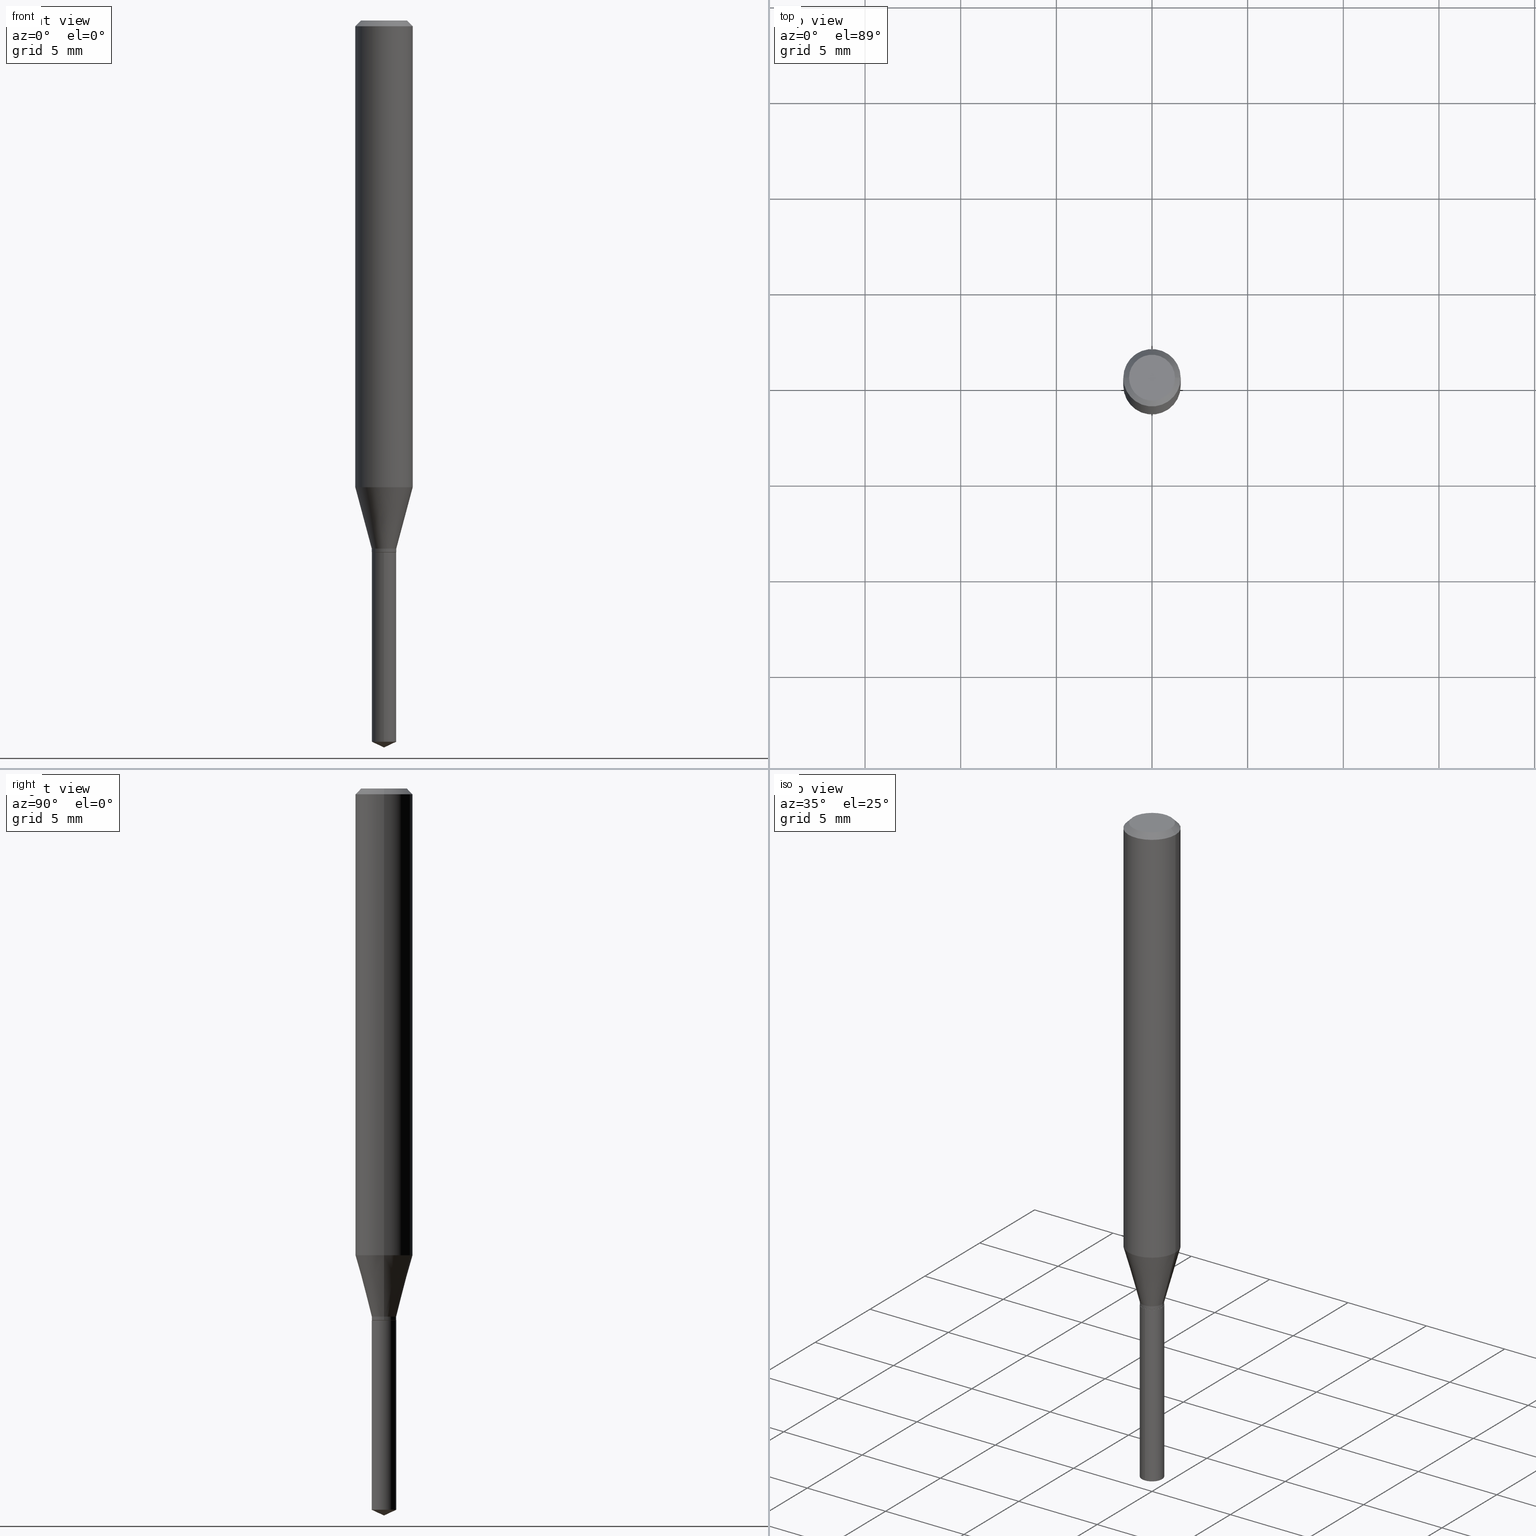
[diagram: canonical four-view strip — front | top / right | iso, engineering-drawing reading convention]
A machine part, canonical four-view strip (front | top / right | iso — engineering-drawing reading convention). The complete STEP part file that produces these views, byte-faithful:
ISO-10303-21;
HEADER;
FILE_DESCRIPTION (( 'STEP AP203' ),
    '1' );
FILE_NAME ('07858.STEP',
    '2024-04-24T04:39:55',
    ( '' ),
    ( '' ),
    'SwSTEP 2.0',
    'SolidWorks 2023',
    '' );
FILE_SCHEMA (( 'CONFIG_CONTROL_DESIGN' ));
ENDSEC;

DATA;
#1 = DIRECTION ( 'NONE',  ( -2.445470214571802116E-29, 3.491479321953280158E-15, 1.000000000000000000 ) ) ;
#2 = AXIS2_PLACEMENT_3D ( 'NONE', #137, #476, #321 ) ;
#3 = AXIS2_PLACEMENT_3D ( 'NONE', #271, #367, #448 ) ;
#4 = FACE_OUTER_BOUND ( 'NONE', #35, .T. ) ;
#5 = EDGE_CURVE ( 'NONE', #42, #370, #37, .T. ) ;
#6 = EDGE_LOOP ( 'NONE', ( #86, #202, #490, #234 ) ) ;
#7 = DIRECTION ( 'NONE',  ( -2.445468806185136597E-29, 3.491481338843145583E-15, 1.000000000000000000 ) ) ;
#8 = EDGE_LOOP ( 'NONE', ( #420, #287, #304, #311 ) ) ;
#9 = LENGTH_MEASURE_WITH_UNIT ( LENGTH_MEASURE( 0.02539999999999999897 ), #164 );
#10 = FACE_OUTER_BOUND ( 'NONE', #44, .T. ) ;
#11 = CARTESIAN_POINT ( 'NONE',  ( -0.05905000000000006077, 4.195754854663395916E-16, -2.904631170795524694E-30 ) ) ;
#12 = CIRCLE ( 'NONE', #249, 0.02469999999999999973 ) ;
#13 = ADVANCED_FACE ( 'NONE', ( #10 ), #428, .T. ) ;
#14 = ORIENTED_EDGE ( 'NONE', *, *, #320, .T. ) ;
#15 = DIRECTION ( 'NONE',  ( 1.000000000000000000, -6.982962677686266711E-15, 4.876185090822587894E-29 ) ) ;
#16 = CARTESIAN_POINT ( 'NONE',  ( -1.759706594776671726E-16, -0.02520000000000382004, -1.094499999999999806 ) ) ;
#17 = LINE ( 'NONE', #95, #373 ) ;
#18 = DIRECTION ( 'NONE',  ( 6.982962677686265922E-15, 1.000000000000000000, -3.491479321953280158E-15 ) ) ;
#19 = ADVANCED_FACE ( 'NONE', ( #314 ), #285, .T. ) ;
#20 = VECTOR ( 'NONE', #299, 39.37007874015748143 ) ;
#21 = CONICAL_SURFACE ( 'NONE', #480, 0.02469999999999999973, 0.7853981633974141952 ) ;
#22 = CALENDAR_DATE ( 2024, 24, 4 ) ;
#23 = DIRECTION ( 'NONE',  ( -2.445468806185136597E-29, 3.491481338843145583E-15, 1.000000000000000000 ) ) ;
#24 = COORDINATED_UNIVERSAL_TIME_OFFSET ( 5, 0, .BEHIND. ) ;
#25 = FACE_OUTER_BOUND ( 'NONE', #129, .T. ) ;
#26 = EDGE_CURVE ( 'NONE', #390, #462, #381, .T. ) ;
#27 = EDGE_CURVE ( 'NONE', #167, #370, #353, .T. ) ;
#28 = PERSON_AND_ORGANIZATION_ROLE ( 'creator' ) ;
#29 = CARTESIAN_POINT ( 'NONE',  ( 2.888098660104665518E-31, -4.123439461173782112E-17, -0.01181000000000007738 ) ) ;
#30 = VECTOR ( 'NONE', #364, 39.37007874015748854 ) ;
#31 = AXIS2_PLACEMENT_3D ( 'NONE', #68, #413, #65 ) ;
#32 = DIRECTION ( 'NONE',  ( -2.445468806185136597E-29, 3.491481338843145583E-15, 1.000000000000000000 ) ) ;
#33 = CARTESIAN_POINT ( 'NONE',  ( -9.261968845786000133E-28, 1.322362114038720264E-13, 37.87397874015748300 ) ) ;
#34 = DIRECTION ( 'NONE',  ( -1.000000000000000000, 6.982962677686266711E-15, 0.000000000000000000 ) ) ;
#35 = EDGE_LOOP ( 'NONE', ( #190, #246 ) ) ;
#36 = CC_DESIGN_PERSON_AND_ORGANIZATION_ASSIGNMENT ( #98, #131, ( #442 ) ) ;
#37 = CIRCLE ( 'NONE', #471, 0.02520000000000000018 ) ;
#38 = LOCAL_TIME ( 0, 39, 55.00000000000000000, #24 ) ;
#39 = DIRECTION ( 'NONE',  ( 1.000000000000000000, -6.982962677686271444E-15, 0.000000000000000000 ) ) ;
#40 = VERTEX_POINT ( 'NONE', #132 ) ;
#41 = DIRECTION ( 'NONE',  ( -6.982962677686267499E-15, -1.000000000000000000, 3.520397390770469253E-15 ) ) ;
#42 = VERTEX_POINT ( 'NONE', #259 ) ;
#43 = EDGE_CURVE ( 'NONE', #370, #42, #51, .T. ) ;
#44 = EDGE_LOOP ( 'NONE', ( #416, #455, #224, #485 ) ) ;
#45 = AXIS2_PLACEMENT_3D ( 'NONE', #387, #120, #277 ) ;
#46 = CONICAL_SURFACE ( 'NONE', #435, 84.42940631927396566, 1.134464013796314230 ) ;
#47 = DIRECTION ( 'NONE',  ( -2.445468806185136877E-29, 3.491481338843145188E-15, 1.000000000000000000 ) ) ;
#48 = EDGE_LOOP ( 'NONE', ( #385, #201, #412, #301 ) ) ;
#49 = VERTEX_POINT ( 'NONE', #253 ) ;
#50 = ORIENTED_EDGE ( 'NONE', *, *, #320, .F. ) ;
#51 = CIRCLE ( 'NONE', #308, 0.02520000000000000018 ) ;
#52 =( CONVERSION_BASED_UNIT ( 'INCH', #9 ) LENGTH_UNIT ( ) NAMED_UNIT ( #289 ) );
#53 = DIRECTION ( 'NONE',  ( 1.000000000000000000, -6.982962677686266711E-15, 4.876176775795935793E-29 ) ) ;
#54 = DESIGN_CONTEXT ( 'detailed design', #227, 'design' ) ;
#55 = DIRECTION ( 'NONE',  ( 1.000000000000000000, -6.982962677686271444E-15, 0.000000000000000000 ) ) ;
#56 = EDGE_CURVE ( 'NONE', #69, #127, #463, .T. ) ;
#57 = DIRECTION ( 'NONE',  ( -2.445468806185136877E-29, 3.491481338843145188E-15, 1.000000000000000000 ) ) ;
#58 = PERSON_AND_ORGANIZATION ( #235, #239 ) ;
#59 = DIRECTION ( 'NONE',  ( 1.000000000000000000, -6.982962677686266711E-15, 0.000000000000000000 ) ) ;
#60 = LOCAL_TIME ( 0, 39, 55.00000000000000000, #474 ) ;
#61 = CARTESIAN_POINT ( 'NONE',  ( 2.657980045442624351E-29, -3.794891067188614341E-15, -1.086899999999999755 ) ) ;
#62 = PRODUCT_DEFINITION_SHAPE ( 'NONE', 'NONE',  #241 ) ;
#63 = MANIFOLD_SOLID_BREP ( 'Body-Move/Copy2[1]', #158 ) ;
#64 = DIRECTION ( 'NONE',  ( -6.328713451373368590E-15, -0.9063077870366484934, 0.4226182617407026054 ) ) ;
#65 = DIRECTION ( 'NONE',  ( 1.000000000000000000, -6.982962677686271444E-15, 0.000000000000000000 ) ) ;
#66 = CIRCLE ( 'NONE', #91, 0.04724000000000000421 ) ;
#67 = AXIS2_PLACEMENT_3D ( 'NONE', #225, #306, #34 ) ;
#68 = CARTESIAN_POINT ( 'NONE',  ( 2.675342873966538993E-29, -3.819680584694400481E-15, -1.093999999999999861 ) ) ;
#69 = VERTEX_POINT ( 'NONE', #218 ) ;
#70 = CC_DESIGN_PERSON_AND_ORGANIZATION_ASSIGNMENT ( #363, #394, ( #125 ) ) ;
#71 = DIRECTION ( 'NONE',  ( 1.000000000000000000, -6.982962677686271444E-15, 0.000000000000000000 ) ) ;
#72 = ORIENTED_EDGE ( 'NONE', *, *, #430, .F. ) ;
#73 = FACE_OUTER_BOUND ( 'NONE', #460, .T. ) ;
#74 = ORIENTED_EDGE ( 'NONE', *, *, #124, .F. ) ;
#75 = AXIS2_PLACEMENT_3D ( 'NONE', #191, #334, #156 ) ;
#76 = ADVANCED_FACE ( 'NONE', ( #210 ), #178, .T. ) ;
#77 = CARTESIAN_POINT ( 'NONE',  ( 2.676565608369631794E-29, -3.821426325363822773E-15, -1.094499999999999806 ) ) ;
#78 = ADVANCED_FACE ( 'NONE', ( #25 ), #185, .F. ) ;
#79 = FACE_OUTER_BOUND ( 'NONE', #8, .T. ) ;
#80 = ORIENTED_EDGE ( 'NONE', *, *, #194, .F. ) ;
#81 = LINE ( 'NONE', #310, #366 ) ;
#82 = ORIENTED_EDGE ( 'NONE', *, *, #326, .T. ) ;
#83 = VECTOR ( 'NONE', #103, 39.37007874015747433 ) ;
#84 = VECTOR ( 'NONE', #114, 39.37007874015748143 ) ;
#85 = FACE_OUTER_BOUND ( 'NONE', #378, .T. ) ;
#86 = ORIENTED_EDGE ( 'NONE', *, *, #368, .T. ) ;
#87 = DIRECTION ( 'NONE',  ( 1.000000000000000000, 0.000000000000000000, 0.000000000000000000 ) ) ;
#88 = ORIENTED_EDGE ( 'NONE', *, *, #56, .F. ) ;
#89 = LINE ( 'NONE', #11, #272 ) ;
#90 = ORIENTED_EDGE ( 'NONE', *, *, #5, .F. ) ;
#91 = AXIS2_PLACEMENT_3D ( 'NONE', #99, #105, #216 ) ;
#92 = AXIS2_PLACEMENT_3D ( 'NONE', #119, #174, #344 ) ;
#93 = EDGE_LOOP ( 'NONE', ( #340, #372, #82, #343 ) ) ;
#94 = EDGE_CURVE ( 'NONE', #488, #42, #397, .T. ) ;
#95 = CARTESIAN_POINT ( 'NONE',  ( 0.05905000000000006077, -4.123439461173744764E-16, 2.879382386107503023E-30 ) ) ;
#96 = PERSON_AND_ORGANIZATION ( #235, #239 ) ;
#97 = CARTESIAN_POINT ( 'NONE',  ( 2.888098660104665518E-31, -4.123439461173782112E-17, -0.01181000000000007738 ) ) ;
#98 = PERSON_AND_ORGANIZATION ( #235, #239 ) ;
#99 = CARTESIAN_POINT ( 'NONE',  ( 8.265746106709734507E-48, -1.180129479067563789E-33, -3.380025165646692144E-19 ) ) ;
#100 = CIRCLE ( 'NONE', #464, 0.05904999999999999832 ) ;
#101 = EDGE_CURVE ( 'NONE', #238, #278, #180, .T. ) ;
#102 = APPROVAL_ROLE ( '' ) ;
#103 = DIRECTION ( 'NONE',  ( -0.2588190451025213501, 5.211531920934551042E-15, 0.9659258262890682012 ) ) ;
#104 = EDGE_CURVE ( 'NONE', #462, #40, #323, .T. ) ;
#105 = DIRECTION ( 'NONE',  ( -2.445468806185136597E-29, 3.491481338843145583E-15, 1.000000000000000000 ) ) ;
#106 = FACE_OUTER_BOUND ( 'NONE', #350, .T. ) ;
#107 = AXIS2_PLACEMENT_3D ( 'NONE', #465, #282, #53 ) ;
#108 = EDGE_LOOP ( 'NONE', ( #147, #172, #110, #88 ) ) ;
#109 = DIRECTION ( 'NONE',  ( 1.000000000000000000, -6.982962677686269866E-15, 0.000000000000000000 ) ) ;
#110 = ORIENTED_EDGE ( 'NONE', *, *, #199, .T. ) ;
#111 = DIRECTION ( 'NONE',  ( 1.000000000000000000, -6.982962677686266711E-15, 0.000000000000000000 ) ) ;
#112 = ORIENTED_EDGE ( 'NONE', *, *, #27, .T. ) ;
#113 = EDGE_CURVE ( 'NONE', #49, #69, #262, .T. ) ;
#114 = DIRECTION ( 'NONE',  ( 0.7071067811865451302, -7.319954787623248157E-15, -0.7071067811865499042 ) ) ;
#115 = ORIENTED_EDGE ( 'NONE', *, *, #291, .T. ) ;
#116 = DIRECTION ( 'NONE',  ( -6.982962677686266711E-15, -1.000000000000000000, 5.420333320762426626E-15 ) ) ;
#117 = ORIENTED_EDGE ( 'NONE', *, *, #389, .F. ) ;
#118 = APPROVAL ( #255, 'UNSPECIFIED' ) ;
#119 = CARTESIAN_POINT ( 'NONE',  ( 0.000000000000000000, 0.000000000000000000, 0.000000000000000000 ) ) ;
#120 = DIRECTION ( 'NONE',  ( -2.445468806185136597E-29, 3.491481338843145583E-15, 1.000000000000000000 ) ) ;
#121 =( NAMED_UNIT ( * ) SI_UNIT ( $, .STERADIAN. ) SOLID_ANGLE_UNIT ( ) );
#122 = VERTEX_POINT ( 'NONE', #446 ) ;
#123 = CC_DESIGN_PERSON_AND_ORGANIZATION_ASSIGNMENT ( #217, #361, ( #125 ) ) ;
#124 = EDGE_CURVE ( 'NONE', #379, #49, #66, .T. ) ;
#125 = PRODUCT_DEFINITION_FORMATION_WITH_SPECIFIED_SOURCE ( 'ANY', '', #140, .NOT_KNOWN. ) ;
#126 = CARTESIAN_POINT ( 'NONE',  ( -0.02469999999999999973, -3.643273042456966434E-15, -1.094499999999999806 ) ) ;
#127 = VERTEX_POINT ( 'NONE', #295 ) ;
#128 = DIRECTION ( 'NONE',  ( 1.000000000000000000, -6.982962677686269866E-15, 0.000000000000000000 ) ) ;
#129 = EDGE_LOOP ( 'NONE', ( #149, #319 ) ) ;
#130 = UNCERTAINTY_MEASURE_WITH_UNIT (LENGTH_MEASURE( 1.000000000000000082E-05 ), #52, 'distance_accuracy_value', 'NONE');
#131 = PERSON_AND_ORGANIZATION_ROLE ( 'classification_officer' ) ;
#132 = CARTESIAN_POINT ( 'NONE',  ( -0.02520000000000000018, -3.628229056529962163E-15, -1.093999999999999861 ) ) ;
#133 = EDGE_CURVE ( 'NONE', #488, #167, #358, .T. ) ;
#134 = AXIS2_PLACEMENT_3D ( 'NONE', #268, #32, #111 ) ;
#135 = DIRECTION ( 'NONE',  ( -1.000000000000000000, 6.982962677686265922E-15, -4.876176775795935793E-29 ) ) ;
#136 = DATE_AND_TIME ( #469, #315 ) ;
#137 = CARTESIAN_POINT ( 'NONE',  ( 3.629929841022778800E-29, -5.182576211698120707E-15, -1.484349047014493994 ) ) ;
#138 = APPROVAL_DATE_TIME ( #261, #176 ) ;
#139 = DIRECTION ( 'NONE',  ( 2.445470214571801836E-29, -3.491479321953280158E-15, -1.000000000000000000 ) ) ;
#140 = PRODUCT ( '07858', '07858', '', ( #386 ) ) ;
#141 = DATE_AND_TIME ( #213, #38 ) ;
#142 = VECTOR ( 'NONE', #356, 39.37007874015748143 ) ;
#143 = CARTESIAN_POINT ( 'NONE',  ( 3.658664905062460986E-29, -5.223606628546217219E-15, -1.496099999999999985 ) ) ;
#144 = VECTOR ( 'NONE', #192, 39.37007874015748854 ) ;
#145 = DIRECTION ( 'NONE',  ( 2.438088387897960049E-29, -3.491481338843145188E-15, -1.000000000000000000 ) ) ;
#146 = DIRECTION ( 'NONE',  ( -2.445468806185136877E-29, 3.491481338843145188E-15, 1.000000000000000000 ) ) ;
#147 = ORIENTED_EDGE ( 'NONE', *, *, #408, .F. ) ;
#148 = DIRECTION ( 'NONE',  ( -2.445470214571802116E-29, 3.491479321953280158E-15, 1.000000000000000000 ) ) ;
#149 = ORIENTED_EDGE ( 'NONE', *, *, #393, .T. ) ;
#150 = APPROVAL_PERSON_ORGANIZATION ( #398, #247, #328 ) ;
#151 = CC_DESIGN_PERSON_AND_ORGANIZATION_ASSIGNMENT ( #96, #28, ( #241 ) ) ;
#152 = FACE_OUTER_BOUND ( 'NONE', #93, .T. ) ;
#153 = ORIENTED_EDGE ( 'NONE', *, *, #133, .F. ) ;
#154 = CARTESIAN_POINT ( 'NONE',  ( 2.676565608369631794E-29, -3.821426325363822773E-15, -1.094499999999999806 ) ) ;
#155 = ORIENTED_EDGE ( 'NONE', *, *, #338, .T. ) ;
#156 = DIRECTION ( 'NONE',  ( -6.982962677686266711E-15, -1.000000000000000000, 0.000000000000000000 ) ) ;
#157 = ORIENTED_EDGE ( 'NONE', *, *, #133, .T. ) ;
#158 = CLOSED_SHELL ( 'NONE', ( #236, #76, #284, #384, #173 ) ) ;
#159 = VECTOR ( 'NONE', #242, 39.37007874015747433 ) ;
#160 = LOCAL_TIME ( 0, 39, 55.00000000000000000, #444 ) ;
#161 = LINE ( 'NONE', #467, #159 ) ;
#162 = EDGE_LOOP ( 'NONE', ( #345, #434, #153 ) ) ;
#163 = EDGE_CURVE ( 'NONE', #278, #449, #279, .T. ) ;
#164 =( LENGTH_UNIT ( ) NAMED_UNIT ( * ) SI_UNIT ( $, .METRE. ) );
#165 = VERTEX_POINT ( 'NONE', #470 ) ;
#166 = DIRECTION ( 'NONE',  ( -2.445468806185136597E-29, 3.491481338843145583E-15, 1.000000000000000000 ) ) ;
#167 = VERTEX_POINT ( 'NONE', #292 ) ;
#168 = VECTOR ( 'NONE', #256, 39.37007874015748143 ) ;
#169 = VECTOR ( 'NONE', #64, 39.37007874015748143 ) ;
#170 = CC_DESIGN_APPROVAL ( #118, ( #125 ) ) ;
#171 = CARTESIAN_POINT ( 'NONE',  ( 2.657980045442624351E-29, -3.794891067188614341E-15, -1.086899999999999755 ) ) ;
#172 = ORIENTED_EDGE ( 'NONE', *, *, #163, .T. ) ;
#173 = ADVANCED_FACE ( 'NONE', ( #263 ), #437, .F. ) ;
#174 = DIRECTION ( 'NONE',  ( -2.445468806185136597E-29, 3.491481338843145583E-15, 1.000000000000000000 ) ) ;
#175 = ORIENTED_EDGE ( 'NONE', *, *, #293, .F. ) ;
#176 = APPROVAL ( #184, 'UNSPECIFIED' ) ;
#177 = DIRECTION ( 'NONE',  ( -6.982962677686267499E-15, -1.000000000000000000, 3.520397390770469253E-15 ) ) ;
#178 = CONICAL_SURFACE ( 'NONE', #456, 84.42940631927396566, 1.134464013796314230 ) ;
#179 = CIRCLE ( 'NONE', #309, 0.02520000000000000018 ) ;
#180 = LINE ( 'NONE', #445, #83 ) ;
#181 = CARTESIAN_POINT ( 'NONE',  ( 1.790567694115719708E-16, 0.02519999999999618032, -1.094500000000000028 ) ) ;
#182 = PERSON_AND_ORGANIZATION_ROLE ( 'design_owner' ) ;
#183 = CARTESIAN_POINT ( 'NONE',  ( -0.05904999999999999832, 3.711095515056362054E-16, -0.01181000000000007738 ) ) ;
#184 = APPROVAL_STATUS ( 'not_yet_approved' ) ;
#185 = PLANE ( 'NONE',  #220 ) ;
#186 = CONICAL_SURFACE ( 'NONE', #327, 0.02520000000000000018, 0.2617993877991500740 ) ;
#187 = ADVANCED_FACE ( 'NONE', ( #406 ), #257, .T. ) ;
#188 = LINE ( 'NONE', #339, #280 ) ;
#189 = DIRECTION ( 'NONE',  ( -1.000000000000000000, 6.982962677686266711E-15, 0.000000000000000000 ) ) ;
#190 = ORIENTED_EDGE ( 'NONE', *, *, #26, .F. ) ;
#191 = CARTESIAN_POINT ( 'NONE',  ( 3.629929841022778800E-29, -5.182576211698120707E-15, -1.484349047014493994 ) ) ;
#192 = DIRECTION ( 'NONE',  ( 0.7071067811865232589, -2.468850131082003836E-15, 0.7071067811865715536 ) ) ;
#193 = EDGE_LOOP ( 'NONE', ( #115, #197, #432, #72 ) ) ;
#194 = EDGE_CURVE ( 'NONE', #165, #167, #478, .T. ) ;
#195 = DIRECTION ( 'NONE',  ( -2.445468806185136597E-29, 3.491481338843145583E-15, 1.000000000000000000 ) ) ;
#196 = ORIENTED_EDGE ( 'NONE', *, *, #26, .T. ) ;
#197 = ORIENTED_EDGE ( 'NONE', *, *, #101, .T. ) ;
#198 = CYLINDRICAL_SURFACE ( 'NONE', #92, 0.02520000000000000018 ) ;
#199 = EDGE_CURVE ( 'NONE', #449, #127, #17, .T. ) ;
#200 = ORIENTED_EDGE ( 'NONE', *, *, #254, .T. ) ;
#201 = ORIENTED_EDGE ( 'NONE', *, *, #393, .F. ) ;
#202 = ORIENTED_EDGE ( 'NONE', *, *, #94, .T. ) ;
#203 = AXIS2_PLACEMENT_3D ( 'NONE', #97, #215, #189 ) ;
#204 = EDGE_CURVE ( 'NONE', #40, #238, #322, .T. ) ;
#205 = AXIS2_PLACEMENT_3D ( 'NONE', #388, #166, #15 ) ;
#206 = DIRECTION ( 'NONE',  ( 0.000000000000000000, 0.000000000000000000, 1.000000000000000000 ) ) ;
#207 = CARTESIAN_POINT ( 'NONE',  ( 2.676565608369631794E-29, -3.821426325363822773E-15, -1.094499999999999806 ) ) ;
#208 = CC_DESIGN_DATE_AND_TIME_ASSIGNMENT ( #477, #436, ( #241 ) ) ;
#209 = APPROVAL_STATUS ( 'not_yet_approved' ) ;
#210 = FACE_OUTER_BOUND ( 'NONE', #332, .T. ) ;
#211 = CARTESIAN_POINT ( 'NONE',  ( 2.349044167195312486E-29, -3.353812509542948489E-15, -0.9605700801637931940 ) ) ;
#212 = AXIS2_PLACEMENT_3D ( 'NONE', #211, #325, #404 ) ;
#213 = CALENDAR_DATE ( 2024, 24, 4 ) ;
#214 = AXIS2_PLACEMENT_3D ( 'NONE', #77, #195, #109 ) ;
#215 = DIRECTION ( 'NONE',  ( 2.445468806185136597E-29, -3.491481338843145583E-15, -1.000000000000000000 ) ) ;
#216 = DIRECTION ( 'NONE',  ( 1.000000000000000000, -6.982962677686266711E-15, 4.876185090822587894E-29 ) ) ;
#217 = PERSON_AND_ORGANIZATION ( #235, #239 ) ;
#218 = CARTESIAN_POINT ( 'NONE',  ( -0.05904999999999999832, -1.277947966611002630E-15, -0.01181000000000007738 ) ) ;
#219 = ADVANCED_FACE ( 'NONE', ( #439 ), #229, .T. ) ;
#220 = AXIS2_PLACEMENT_3D ( 'NONE', #441, #145, #135 ) ;
#221 = CARTESIAN_POINT ( 'NONE',  ( 0.02469999999999999973, -3.993905503502673637E-15, -1.094499999999999806 ) ) ;
#222 = AXIS2_PLACEMENT_3D ( 'NONE', #302, #270, #39 ) ;
#223 = DIRECTION ( 'NONE',  ( -6.982962677686266711E-15, -1.000000000000000000, 5.420333320762426626E-15 ) ) ;
#224 = ORIENTED_EDGE ( 'NONE', *, *, #254, .F. ) ;
#225 = CARTESIAN_POINT ( 'NONE',  ( 2.888098660104665518E-31, -4.123439461173782112E-17, -0.01181000000000007738 ) ) ;
#226 = EDGE_LOOP ( 'NONE', ( #382, #337 ) ) ;
#227 = APPLICATION_CONTEXT ( 'configuration controlled 3d designs of mechanical parts and assemblies' ) ;
#228 = FACE_OUTER_BOUND ( 'NONE', #6, .T. ) ;
#229 = CONICAL_SURFACE ( 'NONE', #203, 0.05904999999999999832, 0.7853981633974449483 ) ;
#230 = AXIS2_PLACEMENT_3D ( 'NONE', #265, #148, #223 ) ;
#231 = ORIENTED_EDGE ( 'NONE', *, *, #113, .F. ) ;
#232 = CC_DESIGN_APPROVAL ( #176, ( #442 ) ) ;
#233 = DIRECTION ( 'NONE',  ( 1.000000000000000000, -6.982962677686269866E-15, 0.000000000000000000 ) ) ;
#234 = ORIENTED_EDGE ( 'NONE', *, *, #27, .F. ) ;
#235 = PERSON ( 'UNSPECIFIED', 'UNSPECIFIED', 'UNSPECIFIED', ('UNSPECIFIED'), ('UNSPECIFIED'), ('UNSPECIFIED') ) ;
#236 = ADVANCED_FACE ( 'NONE', ( #228 ), #482, .T. ) ;
#237 = DIRECTION ( 'NONE',  ( -2.438088387897960049E-29, 3.491481338843145188E-15, 1.000000000000000000 ) ) ;
#238 = VERTEX_POINT ( 'NONE', #484 ) ;
#239 = ORGANIZATION ( 'UNSPECIFIED', 'UNSPECIFIED', '' ) ;
#240 = MANIFOLD_SOLID_BREP ( 'Body-Move/Copy2[2]', #365 ) ;
#241 = PRODUCT_DEFINITION ( 'UNKNOWN', '', #125, #54 ) ;
#242 = DIRECTION ( 'NONE',  ( 0.2588190451025213501, 1.565188264969621968E-15, 0.9659258262890682012 ) ) ;
#243 = DIRECTION ( 'NONE',  ( -2.445470214571802116E-29, 3.491479321953280158E-15, 1.000000000000000000 ) ) ;
#244 =( NAMED_UNIT ( * ) PLANE_ANGLE_UNIT ( ) SI_UNIT ( $, .RADIAN. ) );
#245 = ORIENTED_EDGE ( 'NONE', *, *, #104, .T. ) ;
#246 = ORIENTED_EDGE ( 'NONE', *, *, #338, .F. ) ;
#247 = APPROVAL ( #209, 'UNSPECIFIED' ) ;
#248 = VECTOR ( 'NONE', #468, 39.37007874015748143 ) ;
#249 = AXIS2_PLACEMENT_3D ( 'NONE', #154, #487, #233 ) ;
#250 = APPROVAL_DATE_TIME ( #136, #118 ) ;
#251 = ORIENTED_EDGE ( 'NONE', *, *, #368, .F. ) ;
#252 = CALENDAR_DATE ( 2024, 24, 4 ) ;
#253 = CARTESIAN_POINT ( 'NONE',  ( -0.04724000000000000421, 3.504923541997677355E-16, -3.380025165670481712E-19 ) ) ;
#254 = EDGE_CURVE ( 'NONE', #127, #69, #100, .T. ) ;
#255 = APPROVAL_STATUS ( 'not_yet_approved' ) ;
#256 = DIRECTION ( 'NONE',  ( -2.445468806185136877E-29, 3.491481338843145188E-15, 1.000000000000000000 ) ) ;
#257 = CONICAL_SURFACE ( 'NONE', #479, 0.02520000000000000018, 0.2617993877991500740 ) ;
#258 = APPLICATION_PROTOCOL_DEFINITION ( 'international standard', 'config_control_design', 1994, #227 ) ;
#259 = CARTESIAN_POINT ( 'NONE',  ( 1.790567694115816097E-16, 0.02519999999999618032, -1.094500000000000028 ) ) ;
#260 = ADVANCED_FACE ( 'NONE', ( #106 ), #266, .T. ) ;
#261 = DATE_AND_TIME ( #22, #160 ) ;
#262 = LINE ( 'NONE', #183, #142 ) ;
#263 = FACE_OUTER_BOUND ( 'NONE', #226, .T. ) ;
#264 = CC_DESIGN_DATE_AND_TIME_ASSIGNMENT ( #141, #296, ( #442 ) ) ;
#265 = CARTESIAN_POINT ( 'NONE',  ( 2.676565608369631794E-29, -3.821426325363822773E-15, -1.094499999999999806 ) ) ;
#266 = CONICAL_SURFACE ( 'NONE', #214, 0.02469999999999999973, 0.7853981633974141952 ) ;
#267 = ORIENTED_EDGE ( 'NONE', *, *, #104, .F. ) ;
#268 = CARTESIAN_POINT ( 'NONE',  ( 2.349044167195312486E-29, -3.353812509542948489E-15, -0.9605700801637931940 ) ) ;
#269 = VERTEX_POINT ( 'NONE', #331 ) ;
#270 = DIRECTION ( 'NONE',  ( -2.445468806185136597E-29, 3.491481338843145583E-15, 1.000000000000000000 ) ) ;
#271 = CARTESIAN_POINT ( 'NONE',  ( 0.000000000000000000, 0.000000000000000000, 0.000000000000000000 ) ) ;
#272 = VECTOR ( 'NONE', #47, 39.37007874015748143 ) ;
#273 = ORIENTED_EDGE ( 'NONE', *, *, #329, .T. ) ;
#274 = CARTESIAN_POINT ( 'NONE',  ( 2.676565608369631794E-29, -3.821426325363822773E-15, -1.094499999999999806 ) ) ;
#275 = EDGE_CURVE ( 'NONE', #449, #278, #443, .T. ) ;
#276 = CARTESIAN_POINT ( 'NONE',  ( 0.05905000000000013016, -3.766156455660323409E-15, -0.9605700801637931940 ) ) ;
#277 = DIRECTION ( 'NONE',  ( 1.000000000000000000, -6.982962677686266711E-15, 4.876176775795935793E-29 ) ) ;
#278 = VERTEX_POINT ( 'NONE', #454 ) ;
#279 = CIRCLE ( 'NONE', #212, 0.05905000000000011628 ) ;
#280 = VECTOR ( 'NONE', #146, 39.37007874015748143 ) ;
#281 = FACE_OUTER_BOUND ( 'NONE', #483, .T. ) ;
#282 = DIRECTION ( 'NONE',  ( -2.445468806185136597E-29, 3.491481338843145583E-15, 1.000000000000000000 ) ) ;
#283 = CC_DESIGN_PERSON_AND_ORGANIZATION_ASSIGNMENT ( #349, #182, ( #140 ) ) ;
#284 = ADVANCED_FACE ( 'NONE', ( #333 ), #46, .T. ) ;
#285 = CYLINDRICAL_SURFACE ( 'NONE', #107, 0.05905000000000006077 ) ;
#286 = SHAPE_DEFINITION_REPRESENTATION ( #62, #433 ) ;
#287 = ORIENTED_EDGE ( 'NONE', *, *, #204, .T. ) ;
#288 = CONICAL_SURFACE ( 'NONE', #67, 0.05904999999999999832, 0.7853981633974449483 ) ;
#289 = DIMENSIONAL_EXPONENTS ( 1.000000000000000000, 0.000000000000000000, 0.000000000000000000, 0.000000000000000000, 0.000000000000000000, 0.000000000000000000, 0.000000000000000000 ) ;
#290 = COORDINATED_UNIVERSAL_TIME_OFFSET ( 5, 0, .BEHIND. ) ;
#291 = EDGE_CURVE ( 'NONE', #269, #238, #457, .T. ) ;
#292 = CARTESIAN_POINT ( 'NONE',  ( -1.759706594776576077E-16, -0.02520000000000518700, -1.484349047014493994 ) ) ;
#293 = EDGE_CURVE ( 'NONE', #40, #122, #418, .T. ) ;
#294 = CARTESIAN_POINT ( 'NONE',  ( 2.676565608369631794E-29, -3.821426325363822773E-15, -1.094499999999999806 ) ) ;
#295 = CARTESIAN_POINT ( 'NONE',  ( 0.05904999999999999832, -4.535783407291118600E-16, -0.01181000000000007738 ) ) ;
#296 = DATE_TIME_ROLE ( 'classification_date' ) ;
#297 = APPROVAL_PERSON_ORGANIZATION ( #58, #176, #359 ) ;
#298 = CARTESIAN_POINT ( 'NONE',  ( -9.261968845786000133E-28, 1.322362114038720264E-13, 37.87397874015748300 ) ) ;
#299 = DIRECTION ( 'NONE',  ( -2.445470214571802396E-29, 3.491479321953280158E-15, 1.000000000000000000 ) ) ;
#300 = CYLINDRICAL_SURFACE ( 'NONE', #3, 0.02520000000000000018 ) ;
#301 = ORIENTED_EDGE ( 'NONE', *, *, #56, .T. ) ;
#302 = CARTESIAN_POINT ( 'NONE',  ( 2.657980045442624351E-29, -3.794891067188614341E-15, -1.086899999999999755 ) ) ;
#303 = CARTESIAN_POINT ( 'NONE',  ( -1.759706594776671726E-16, -0.02520000000000382004, -1.094499999999999806 ) ) ;
#304 = ORIENTED_EDGE ( 'NONE', *, *, #291, .F. ) ;
#305 = FACE_OUTER_BOUND ( 'NONE', #423, .T. ) ;
#306 = DIRECTION ( 'NONE',  ( 2.445468806185136597E-29, -3.491481338843145583E-15, -1.000000000000000000 ) ) ;
#307 = EDGE_CURVE ( 'NONE', #238, #269, #472, .T. ) ;
#308 = AXIS2_PLACEMENT_3D ( 'NONE', #294, #357, #360 ) ;
#309 = AXIS2_PLACEMENT_3D ( 'NONE', #407, #352, #341 ) ;
#310 = CARTESIAN_POINT ( 'NONE',  ( 3.658668015054778287E-29, -5.223602213574301462E-15, -1.496099999999999985 ) ) ;
#311 = ORIENTED_EDGE ( 'NONE', *, *, #326, .F. ) ;
#312 = ORIENTED_EDGE ( 'NONE', *, *, #307, .T. ) ;
#313 = DIRECTION ( 'NONE',  ( -2.445468806185136597E-29, 3.491481338843145583E-15, 1.000000000000000000 ) ) ;
#314 = FACE_OUTER_BOUND ( 'NONE', #108, .T. ) ;
#315 = LOCAL_TIME ( 0, 39, 55.00000000000000000, #402 ) ;
#316 = CARTESIAN_POINT ( 'NONE',  ( 2.676565608369631794E-29, -3.821426325363822773E-15, -1.094499999999999806 ) ) ;
#317 = ORIENTED_EDGE ( 'NONE', *, *, #101, .F. ) ;
#318 = DIRECTION ( 'NONE',  ( 6.439704144417024831E-15, 0.9063077870366513800, 0.4226182617406963327 ) ) ;
#319 = ORIENTED_EDGE ( 'NONE', *, *, #124, .T. ) ;
#320 = EDGE_CURVE ( 'NONE', #390, #122, #419, .T. ) ;
#321 = DIRECTION ( 'NONE',  ( -6.982962677686266711E-15, -1.000000000000000000, 0.000000000000000000 ) ) ;
#322 = LINE ( 'NONE', #475, #168 ) ;
#323 = LINE ( 'NONE', #481, #30 ) ;
#324 = CALENDAR_DATE ( 2024, 24, 4 ) ;
#325 = DIRECTION ( 'NONE',  ( -2.445468806185136597E-29, 3.491481338843145583E-15, 1.000000000000000000 ) ) ;
#326 = EDGE_CURVE ( 'NONE', #122, #269, #188, .T. ) ;
#327 = AXIS2_PLACEMENT_3D ( 'NONE', #171, #313, #422 ) ;
#328 = APPROVAL_ROLE ( '' ) ;
#329 = EDGE_CURVE ( 'NONE', #379, #127, #458, .T. ) ;
#330 = DIRECTION ( 'NONE',  ( -2.445470214571802116E-29, 3.491479321953280158E-15, 1.000000000000000000 ) ) ;
#331 = CARTESIAN_POINT ( 'NONE',  ( 0.02520000000000000018, -3.970861726666308212E-15, -1.086899999999999755 ) ) ;
#332 = EDGE_LOOP ( 'NONE', ( #80, #376, #251 ) ) ;
#333 = FACE_OUTER_BOUND ( 'NONE', #162, .T. ) ;
#334 = DIRECTION ( 'NONE',  ( -2.445470214571802116E-29, 3.491479321953280158E-15, 1.000000000000000000 ) ) ;
#335 = AXIS2_PLACEMENT_3D ( 'NONE', #346, #206, #87 ) ;
#336 = CARTESIAN_POINT ( 'NONE',  ( 2.676565608369631794E-29, -3.821426325363822773E-15, -1.094499999999999806 ) ) ;
#337 = ORIENTED_EDGE ( 'NONE', *, *, #5, .T. ) ;
#338 = EDGE_CURVE ( 'NONE', #462, #390, #12, .T. ) ;
#339 = CARTESIAN_POINT ( 'NONE',  ( 0.02520000000000000018, -1.759706594776939446E-16, 1.228796547500575980E-30 ) ) ;
#340 = ORIENTED_EDGE ( 'NONE', *, *, #204, .F. ) ;
#341 = DIRECTION ( 'NONE',  ( 1.000000000000000000, -6.982962677686271444E-15, 0.000000000000000000 ) ) ;
#342 = CIRCLE ( 'NONE', #75, 0.02520000000000000018 ) ;
#343 = ORIENTED_EDGE ( 'NONE', *, *, #307, .F. ) ;
#344 = DIRECTION ( 'NONE',  ( 1.000000000000000000, -6.982962677686267499E-15, 4.876176775795936353E-29 ) ) ;
#345 = ORIENTED_EDGE ( 'NONE', *, *, #421, .F. ) ;
#346 = CARTESIAN_POINT ( 'NONE',  ( 0.000000000000000000, 0.000000000000000000, 0.000000000000000000 ) ) ;
#347 = CARTESIAN_POINT ( 'NONE',  ( 2.676565608369631794E-29, -3.821426325363822773E-15, -1.094499999999999806 ) ) ;
#348 = PRODUCT_RELATED_PRODUCT_CATEGORY ( 'detail', '', ( #140 ) ) ;
#349 = PERSON_AND_ORGANIZATION ( #235, #239 ) ;
#350 = EDGE_LOOP ( 'NONE', ( #267, #155, #14, #175 ) ) ;
#351 = AXIS2_PLACEMENT_3D ( 'NONE', #336, #1, #116 ) ;
#352 = DIRECTION ( 'NONE',  ( -2.445468806185136597E-29, 3.491481338843145583E-15, 1.000000000000000000 ) ) ;
#353 = LINE ( 'NONE', #16, #248 ) ;
#354 = ADVANCED_FACE ( 'NONE', ( #152 ), #300, .T. ) ;
#355 = ADVANCED_FACE ( 'NONE', ( #305 ), #288, .T. ) ;
#356 = DIRECTION ( 'NONE',  ( -0.7071067811865451302, 2.468850131082231817E-15, -0.7071067811865499042 ) ) ;
#357 = DIRECTION ( 'NONE',  ( -2.445470214571802116E-29, 3.491479321953280158E-15, 1.000000000000000000 ) ) ;
#358 = CIRCLE ( 'NONE', #2, 0.02520000000000000018 ) ;
#359 = APPROVAL_ROLE ( '' ) ;
#360 = DIRECTION ( 'NONE',  ( -6.982962677686266711E-15, -1.000000000000000000, 5.420333320762426626E-15 ) ) ;
#361 = PERSON_AND_ORGANIZATION_ROLE ( 'design_supplier' ) ;
#362 = DIRECTION ( 'NONE',  ( -2.445468806185136597E-29, 3.491481338843145583E-15, 1.000000000000000000 ) ) ;
#363 = PERSON_AND_ORGANIZATION ( #235, #239 ) ;
#364 = DIRECTION ( 'NONE',  ( -0.7071067811865232589, 7.493145998870265808E-15, 0.7071067811865715536 ) ) ;
#365 = CLOSED_SHELL ( 'NONE', ( #447, #355, #13, #187, #417, #354, #409, #19, #219, #78, #461, #260 ) ) ;
#366 = VECTOR ( 'NONE', #318, 39.37007874015748854 ) ;
#367 = DIRECTION ( 'NONE',  ( -2.445468806185136597E-29, 3.491481338843145583E-15, 1.000000000000000000 ) ) ;
#368 = EDGE_CURVE ( 'NONE', #167, #488, #342, .T. ) ;
#369 = DIRECTION ( 'NONE',  ( -2.445468806185136597E-29, 3.491481338843145583E-15, 1.000000000000000000 ) ) ;
#370 = VERTEX_POINT ( 'NONE', #303 ) ;
#371 = CARTESIAN_POINT ( 'NONE',  ( 2.657980045442624351E-29, -3.794891067188614341E-15, -1.086899999999999755 ) ) ;
#372 = ORIENTED_EDGE ( 'NONE', *, *, #293, .T. ) ;
#373 = VECTOR ( 'NONE', #57, 39.37007874015748143 ) ;
#374 = DIRECTION ( 'NONE',  ( -2.445470214571802116E-29, 3.491479321953280158E-15, 1.000000000000000000 ) ) ;
#375 = CIRCLE ( 'NONE', #205, 0.04724000000000000421 ) ;
#376 = ORIENTED_EDGE ( 'NONE', *, *, #421, .T. ) ;
#377 = CYLINDRICAL_SURFACE ( 'NONE', #351, 0.02520000000000000018 ) ;
#378 = EDGE_LOOP ( 'NONE', ( #317, #312, #414, #466 ) ) ;
#379 = VERTEX_POINT ( 'NONE', #452 ) ;
#380 = DIRECTION ( 'NONE',  ( 1.000000000000000000, -6.982962677686265922E-15, 4.876176775795935793E-29 ) ) ;
#381 = CIRCLE ( 'NONE', #391, 0.02469999999999999973 ) ;
#382 = ORIENTED_EDGE ( 'NONE', *, *, #43, .T. ) ;
#383 = APPLICATION_PROTOCOL_DEFINITION ( 'international standard', 'config_control_design', 1994, #403 ) ;
#384 = ADVANCED_FACE ( 'NONE', ( #73 ), #377, .T. ) ;
#385 = ORIENTED_EDGE ( 'NONE', *, *, #329, .F. ) ;
#386 = MECHANICAL_CONTEXT ( 'NONE', #403, 'mechanical' ) ;
#387 = CARTESIAN_POINT ( 'NONE',  ( 0.000000000000000000, 0.000000000000000000, 0.000000000000000000 ) ) ;
#388 = CARTESIAN_POINT ( 'NONE',  ( 8.265746106709734507E-48, -1.180129479067563789E-33, -3.380025165646692144E-19 ) ) ;
#389 = EDGE_CURVE ( 'NONE', #122, #40, #179, .T. ) ;
#390 = VERTEX_POINT ( 'NONE', #459 ) ;
#391 = AXIS2_PLACEMENT_3D ( 'NONE', #207, #395, #425 ) ;
#392 = AXIS2_PLACEMENT_3D ( 'NONE', #371, #451, #71 ) ;
#393 = EDGE_CURVE ( 'NONE', #49, #379, #375, .T. ) ;
#394 = PERSON_AND_ORGANIZATION_ROLE ( 'creator' ) ;
#395 = DIRECTION ( 'NONE',  ( -2.445468806185136597E-29, 3.491481338843145583E-15, 1.000000000000000000 ) ) ;
#396 = SECURITY_CLASSIFICATION_LEVEL ( 'unclassified' ) ;
#397 = LINE ( 'NONE', #181, #20 ) ;
#398 = PERSON_AND_ORGANIZATION ( #235, #239 ) ;
#399 = CARTESIAN_POINT ( 'NONE',  ( 2.676565608369631794E-29, -3.821426325363822773E-15, -1.094499999999999806 ) ) ;
#400 = AXIS2_PLACEMENT_3D ( 'NONE', #29, #23, #59 ) ;
#401 = APPROVAL_PERSON_ORGANIZATION ( #438, #118, #102 ) ;
#402 = COORDINATED_UNIVERSAL_TIME_OFFSET ( 5, 0, .BEHIND. ) ;
#403 = APPLICATION_CONTEXT ( 'configuration controlled 3d designs of mechanical parts and assemblies' ) ;
#404 = DIRECTION ( 'NONE',  ( 1.000000000000000000, -6.982962677686266711E-15, 0.000000000000000000 ) ) ;
#405 = DATE_AND_TIME ( #252, #486 ) ;
#406 = FACE_OUTER_BOUND ( 'NONE', #193, .T. ) ;
#407 = CARTESIAN_POINT ( 'NONE',  ( 2.675342873966538993E-29, -3.819680584694400481E-15, -1.093999999999999861 ) ) ;
#408 = EDGE_CURVE ( 'NONE', #278, #69, #89, .T. ) ;
#409 = ADVANCED_FACE ( 'NONE', ( #85 ), #186, .T. ) ;
#410 = AXIS2_PLACEMENT_3D ( 'NONE', #274, #237, #380 ) ;
#411 = CARTESIAN_POINT ( 'NONE',  ( 2.888098660104665518E-31, -4.123439461173782112E-17, -0.01181000000000007738 ) ) ;
#412 = ORIENTED_EDGE ( 'NONE', *, *, #113, .T. ) ;
#413 = DIRECTION ( 'NONE',  ( -2.445468806185136597E-29, 3.491481338843145583E-15, 1.000000000000000000 ) ) ;
#414 = ORIENTED_EDGE ( 'NONE', *, *, #430, .T. ) ;
#415 = DIRECTION ( 'NONE',  ( 1.000000000000000000, -6.982962677686266711E-15, 0.000000000000000000 ) ) ;
#416 = ORIENTED_EDGE ( 'NONE', *, *, #275, .T. ) ;
#417 = ADVANCED_FACE ( 'NONE', ( #79 ), #198, .T. ) ;
#418 = CIRCLE ( 'NONE', #31, 0.02520000000000000018 ) ;
#419 = LINE ( 'NONE', #221, #144 ) ;
#420 = ORIENTED_EDGE ( 'NONE', *, *, #389, .T. ) ;
#421 = EDGE_CURVE ( 'NONE', #165, #488, #81, .T. ) ;
#422 = DIRECTION ( 'NONE',  ( 1.000000000000000000, -6.982962677686271444E-15, 0.000000000000000000 ) ) ;
#423 = EDGE_LOOP ( 'NONE', ( #74, #273, #200, #231 ) ) ;
#424 = PLANE ( 'NONE',  #410 ) ;
#425 = DIRECTION ( 'NONE',  ( 1.000000000000000000, -6.982962677686269866E-15, 0.000000000000000000 ) ) ;
#426 = AXIS2_PLACEMENT_3D ( 'NONE', #399, #139, #18 ) ;
#427 = CC_DESIGN_APPROVAL ( #247, ( #241 ) ) ;
#428 = CYLINDRICAL_SURFACE ( 'NONE', #45, 0.05905000000000006077 ) ;
#429 = DIRECTION ( 'NONE',  ( -6.982962677686266711E-15, -1.000000000000000000, 5.420333320762426626E-15 ) ) ;
#430 = EDGE_CURVE ( 'NONE', #269, #449, #161, .T. ) ;
#431 = CARTESIAN_POINT ( 'NONE',  ( 1.790567694115815357E-16, 0.02519999999999481335, -1.484349047014493994 ) ) ;
#432 = ORIENTED_EDGE ( 'NONE', *, *, #275, .F. ) ;
#433 = ADVANCED_BREP_SHAPE_REPRESENTATION ( '07858', ( #63, #240, #335 ), #450 ) ;
#434 = ORIENTED_EDGE ( 'NONE', *, *, #194, .T. ) ;
#435 = AXIS2_PLACEMENT_3D ( 'NONE', #33, #374, #41 ) ;
#436 = DATE_TIME_ROLE ( 'creation_date' ) ;
#437 = PLANE ( 'NONE',  #426 ) ;
#438 = PERSON_AND_ORGANIZATION ( #235, #239 ) ;
#439 = FACE_OUTER_BOUND ( 'NONE', #48, .T. ) ;
#440 = APPROVAL_DATE_TIME ( #405, #247 ) ;
#441 = CARTESIAN_POINT ( 'NONE',  ( 4.132873053354867254E-48, -5.900647395337818946E-34, -1.690012582823346072E-19 ) ) ;
#442 = SECURITY_CLASSIFICATION ( '', '', #396 ) ;
#443 = CIRCLE ( 'NONE', #134, 0.05905000000000011628 ) ;
#444 = COORDINATED_UNIVERSAL_TIME_OFFSET ( 5, 0, .BEHIND. ) ;
#445 = CARTESIAN_POINT ( 'NONE',  ( -0.02520000000000000018, -3.615834297777069093E-15, -1.086899999999999755 ) ) ;
#446 = CARTESIAN_POINT ( 'NONE',  ( 0.02520000000000000018, -3.995651244172095140E-15, -1.093999999999999861 ) ) ;
#447 = ADVANCED_FACE ( 'NONE', ( #281 ), #21, .T. ) ;
#448 = DIRECTION ( 'NONE',  ( 1.000000000000000000, -6.982962677686267499E-15, 4.876176775795936353E-29 ) ) ;
#449 = VERTEX_POINT ( 'NONE', #276 ) ;
#450 =( GEOMETRIC_REPRESENTATION_CONTEXT ( 3 ) GLOBAL_UNCERTAINTY_ASSIGNED_CONTEXT ( ( #130 ) ) GLOBAL_UNIT_ASSIGNED_CONTEXT ( ( #52, #244, #121 ) ) REPRESENTATION_CONTEXT ( 'NONE', 'WORKASPACE' ) );
#451 = DIRECTION ( 'NONE',  ( -2.445468806185136597E-29, 3.491481338843145583E-15, 1.000000000000000000 ) ) ;
#452 = CARTESIAN_POINT ( 'NONE',  ( 0.04724000000000000421, -3.852183633974369838E-16, -3.380025165621689721E-19 ) ) ;
#453 = ORIENTED_EDGE ( 'NONE', *, *, #94, .F. ) ;
#454 = CARTESIAN_POINT ( 'NONE',  ( -0.05905000000000013016, -2.934237024076608207E-15, -0.9605700801637931940 ) ) ;
#455 = ORIENTED_EDGE ( 'NONE', *, *, #408, .T. ) ;
#456 = AXIS2_PLACEMENT_3D ( 'NONE', #298, #330, #177 ) ;
#457 = CIRCLE ( 'NONE', #222, 0.02520000000000000018 ) ;
#458 = LINE ( 'NONE', #489, #84 ) ;
#459 = CARTESIAN_POINT ( 'NONE',  ( 0.02469999999999999973, -3.993905503502673637E-15, -1.094499999999999806 ) ) ;
#460 = EDGE_LOOP ( 'NONE', ( #453, #157, #112, #90 ) ) ;
#461 = ADVANCED_FACE ( 'NONE', ( #4 ), #424, .F. ) ;
#462 = VERTEX_POINT ( 'NONE', #126 ) ;
#463 = CIRCLE ( 'NONE', #400, 0.05904999999999999832 ) ;
#464 = AXIS2_PLACEMENT_3D ( 'NONE', #411, #369, #415 ) ;
#465 = CARTESIAN_POINT ( 'NONE',  ( 0.000000000000000000, 0.000000000000000000, 0.000000000000000000 ) ) ;
#466 = ORIENTED_EDGE ( 'NONE', *, *, #163, .F. ) ;
#467 = CARTESIAN_POINT ( 'NONE',  ( 0.02520000000000000018, -3.970861726666308212E-15, -1.086899999999999755 ) ) ;
#468 = DIRECTION ( 'NONE',  ( -2.445470214571802396E-29, 3.491479321953280158E-15, 1.000000000000000000 ) ) ;
#469 = CALENDAR_DATE ( 2024, 24, 4 ) ;
#470 = CARTESIAN_POINT ( 'NONE',  ( 3.658667988020872822E-29, -5.223602213574301462E-15, -1.496099999999999985 ) ) ;
#471 = AXIS2_PLACEMENT_3D ( 'NONE', #347, #243, #429 ) ;
#472 = CIRCLE ( 'NONE', #392, 0.02520000000000000018 ) ;
#473 = CC_DESIGN_SECURITY_CLASSIFICATION ( #442, ( #125 ) ) ;
#474 = COORDINATED_UNIVERSAL_TIME_OFFSET ( 5, 0, .BEHIND. ) ;
#475 = CARTESIAN_POINT ( 'NONE',  ( -0.02520000000000000018, 1.790567694115452481E-16, -1.239571642744236191E-30 ) ) ;
#476 = DIRECTION ( 'NONE',  ( -2.445470214571802116E-29, 3.491479321953280158E-15, 1.000000000000000000 ) ) ;
#477 = DATE_AND_TIME ( #324, #60 ) ;
#478 = LINE ( 'NONE', #143, #169 ) ;
#479 = AXIS2_PLACEMENT_3D ( 'NONE', #61, #362, #55 ) ;
#480 = AXIS2_PLACEMENT_3D ( 'NONE', #316, #7, #128 ) ;
#481 = CARTESIAN_POINT ( 'NONE',  ( -0.02469999999999999973, -3.645922269631077635E-15, -1.094499999999999806 ) ) ;
#482 = CYLINDRICAL_SURFACE ( 'NONE', #230, 0.02520000000000000018 ) ;
#483 = EDGE_LOOP ( 'NONE', ( #196, #245, #117, #50 ) ) ;
#484 = CARTESIAN_POINT ( 'NONE',  ( -0.02520000000000000018, -3.628229056529962163E-15, -1.086899999999999755 ) ) ;
#485 = ORIENTED_EDGE ( 'NONE', *, *, #199, .F. ) ;
#486 = LOCAL_TIME ( 0, 39, 55.00000000000000000, #290 ) ;
#487 = DIRECTION ( 'NONE',  ( -2.445468806185136597E-29, 3.491481338843145583E-15, 1.000000000000000000 ) ) ;
#488 = VERTEX_POINT ( 'NONE', #431 ) ;
#489 = CARTESIAN_POINT ( 'NONE',  ( 0.05904999999999999832, -4.463468013801467941E-16, -0.01181000000000007738 ) ) ;
#490 = ORIENTED_EDGE ( 'NONE', *, *, #43, .F. ) ;
ENDSEC;
END-ISO-10303-21;
